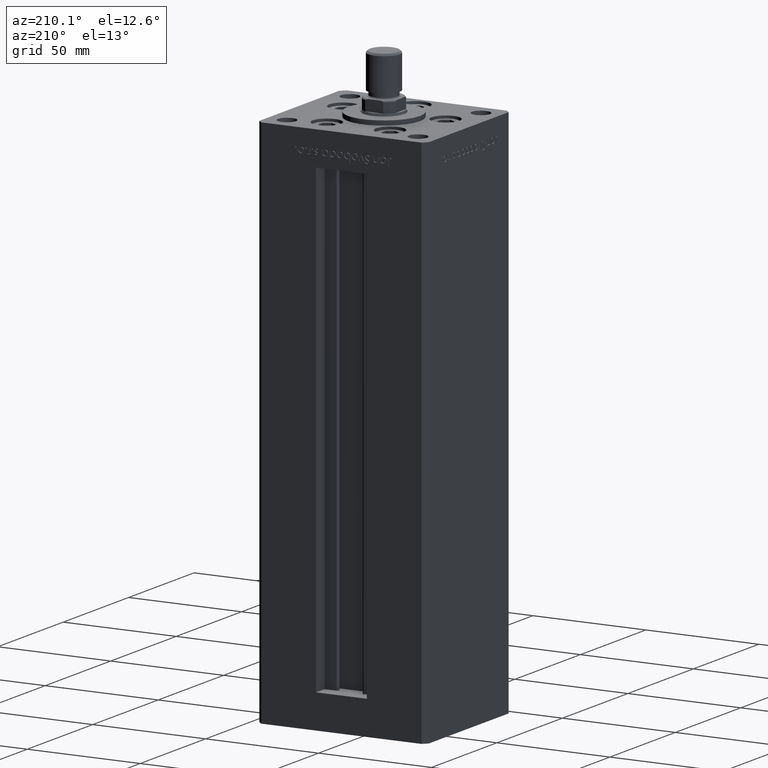
[diagram: clean part render]
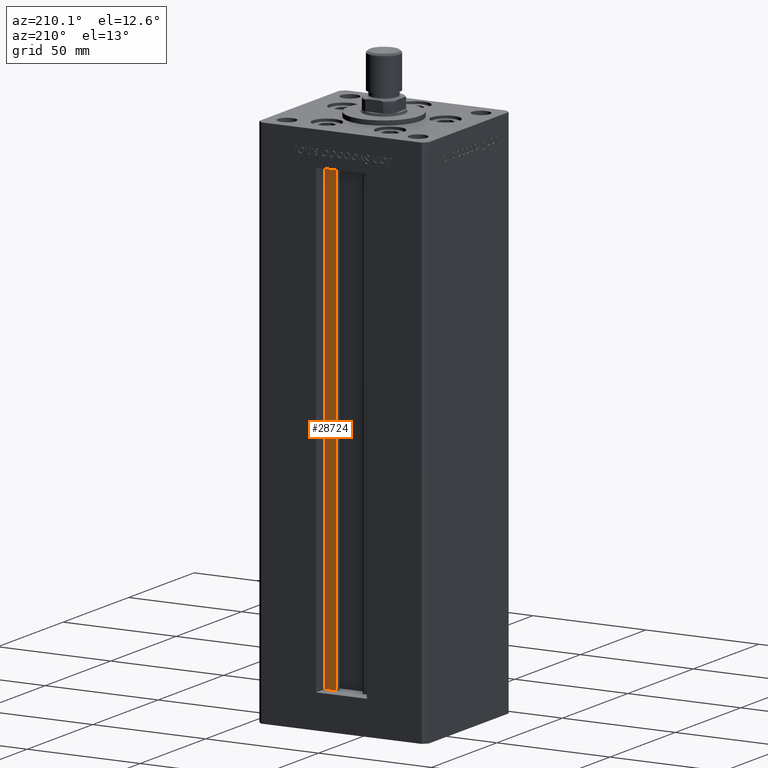
[diagram: same view with one face highlighted and labeled with its STEP entity id]
A machine part, auxiliary view. The second image highlights one B-rep face of the part: STEP entity #28724.
In plain terms, the highlighted planar face has unit normal (0, -1, 0).
Its self-contained STEP definition (entity closure, byte-faithful):
#2130 = ORIENTED_EDGE ( 'NONE', *, *, #24122, .F. ) ;
#2257 = CARTESIAN_POINT ( 'NONE',  ( 11.25000000000000178, 25.99999999999999289, 0.000000000000000000 ) ) ;
#3534 = CARTESIAN_POINT ( 'NONE',  ( 6.183333333334001480, 25.99999999999999289, 0.000000000000000000 ) ) ;
#3837 = CARTESIAN_POINT ( 'NONE',  ( 6.183333333334001480, 25.99999999999999289, 0.000000000000000000 ) ) ;
#3948 = VERTEX_POINT ( 'NONE', #2257 ) ;
#5430 = CARTESIAN_POINT ( 'NONE',  ( 6.183333333334001480, 25.99999999999999289, 206.0000000000000000 ) ) ;
#8714 = ORIENTED_EDGE ( 'NONE', *, *, #33989, .F. ) ;
#9278 = CARTESIAN_POINT ( 'NONE',  ( 11.25000000000000178, 25.99999999999999289, 206.0000000000000000 ) ) ;
#13044 = LINE ( 'NONE', #41341, #26099 ) ;
#14516 = EDGE_LOOP ( 'NONE', ( #8714, #29463, #39804, #2130 ) ) ;
#15511 = DIRECTION ( 'NONE',  ( -0.000000000000000000, -0.000000000000000000, 1.000000000000000000 ) ) ;
#18491 = VECTOR ( 'NONE', #15511, 1000.000000000000000 ) ;
#18590 = EDGE_CURVE ( 'NONE', #48736, #49431, #39053, .T. ) ;
#18664 = DIRECTION ( 'NONE',  ( -0.000000000000000000, -0.000000000000000000, 1.000000000000000000 ) ) ;
#20129 = DIRECTION ( 'NONE',  ( 1.000000000000000000, 0.000000000000000000, 0.000000000000000000 ) ) ;
#21995 = AXIS2_PLACEMENT_3D ( 'NONE', #35351, #39839, #51507 ) ;
#24122 = EDGE_CURVE ( 'NONE', #37382, #49431, #13044, .T. ) ;
#25195 = EDGE_CURVE ( 'NONE', #48736, #3948, #27560, .T. ) ;
#26099 = VECTOR ( 'NONE', #41609, 1000.000000000000000 ) ;
#27560 = LINE ( 'NONE', #52171, #46430 ) ;
#28724 = ADVANCED_FACE ( 'NONE', ( #39051 ), #39318, .F. ) ;
#29463 = ORIENTED_EDGE ( 'NONE', *, *, #25195, .F. ) ;
#30825 = LINE ( 'NONE', #46181, #45832 ) ;
#33989 = EDGE_CURVE ( 'NONE', #3948, #37382, #30825, .T. ) ;
#35351 = CARTESIAN_POINT ( 'NONE',  ( 6.183333333334001480, 25.99999999999999289, 0.000000000000000000 ) ) ;
#37382 = VERTEX_POINT ( 'NONE', #9278 ) ;
#39051 = FACE_OUTER_BOUND ( 'NONE', #14516, .T. ) ;
#39053 = LINE ( 'NONE', #3837, #18491 ) ;
#39318 = PLANE ( 'NONE',  #21995 ) ;
#39804 = ORIENTED_EDGE ( 'NONE', *, *, #18590, .T. ) ;
#39839 = DIRECTION ( 'NONE',  ( 0.000000000000000000, -1.000000000000000000, 0.000000000000000000 ) ) ;
#41341 = CARTESIAN_POINT ( 'NONE',  ( 0.000000000000000000, 25.99999999999999289, 206.0000000000000000 ) ) ;
#41609 = DIRECTION ( 'NONE',  ( -1.000000000000000000, 0.000000000000000000, 0.000000000000000000 ) ) ;
#45832 = VECTOR ( 'NONE', #18664, 1000.000000000000000 ) ;
#46181 = CARTESIAN_POINT ( 'NONE',  ( 11.25000000000000178, 25.99999999999999289, 0.000000000000000000 ) ) ;
#46430 = VECTOR ( 'NONE', #20129, 1000.000000000000000 ) ;
#48736 = VERTEX_POINT ( 'NONE', #3534 ) ;
#49431 = VERTEX_POINT ( 'NONE', #5430 ) ;
#51507 = DIRECTION ( 'NONE',  ( 0.000000000000000000, -0.000000000000000000, -1.000000000000000000 ) ) ;
#52171 = CARTESIAN_POINT ( 'NONE',  ( 6.183333333334001480, 25.99999999999999289, 0.000000000000000000 ) ) ;